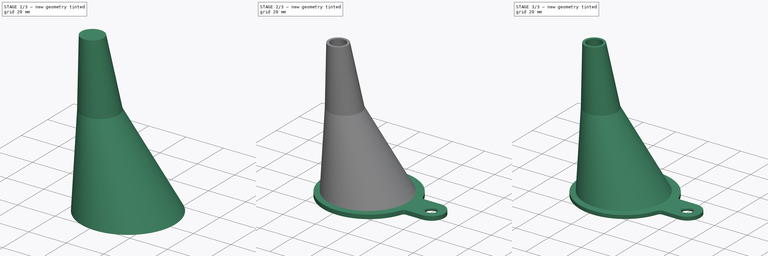
[diagram: build sequence overview — one tinted view per stage of 3, left to right]
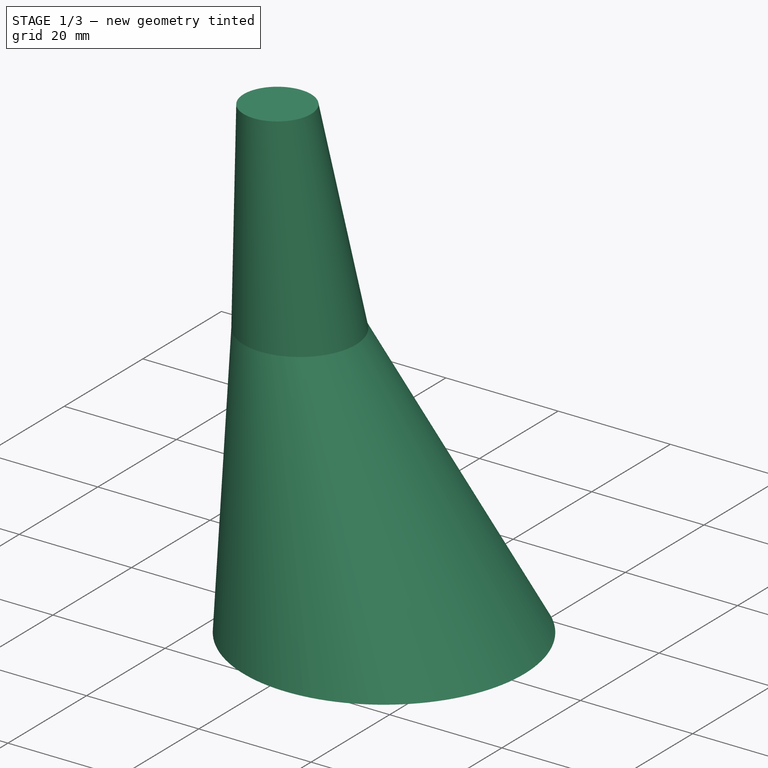
[diagram: stage 1 of 3 — iso view after this stage's code; geometry added in this stage tinted green]
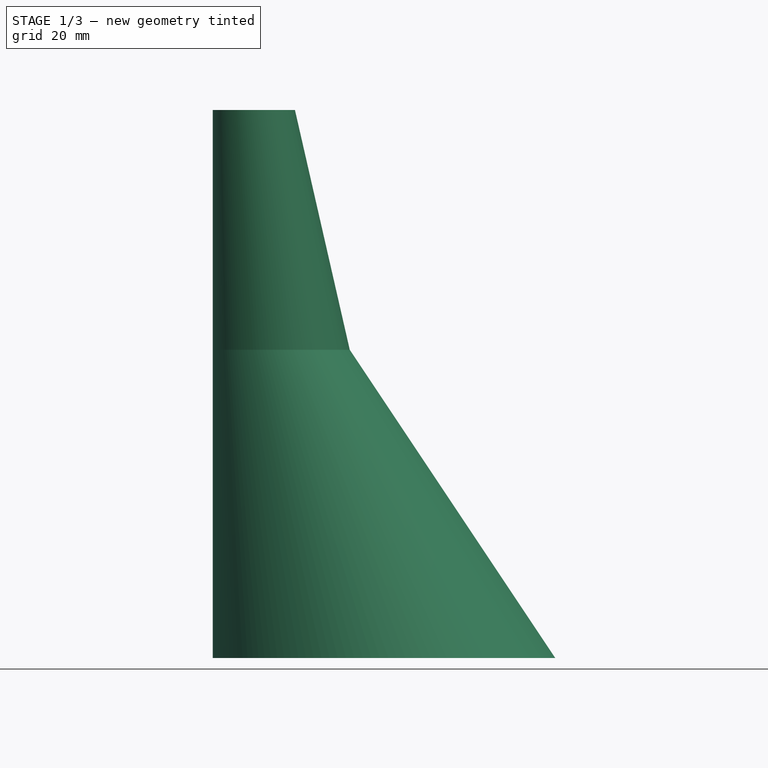
[diagram: stage 1 of 3 — front view after this stage's code; geometry added in this stage tinted green]
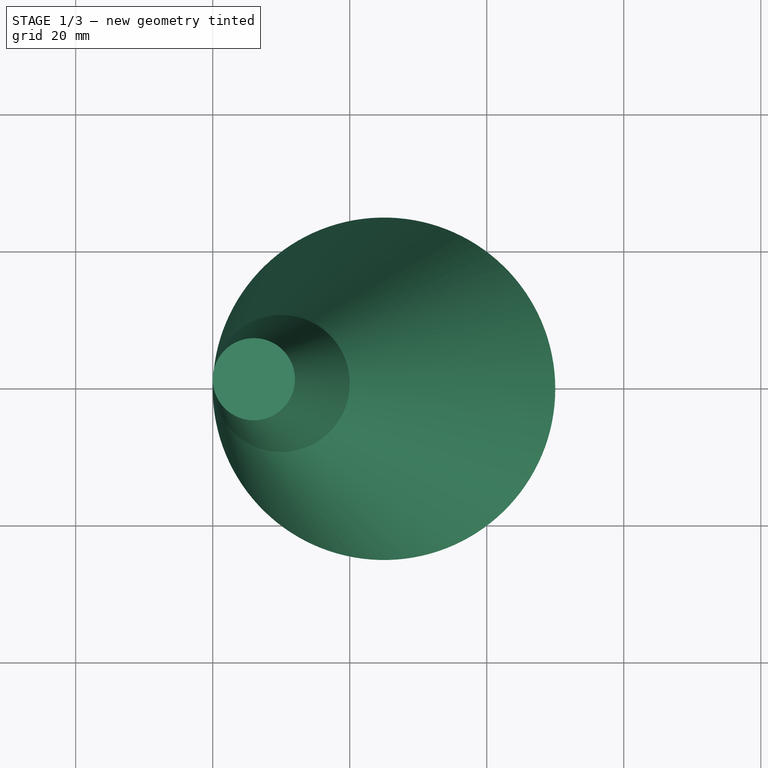
[diagram: stage 1 of 3 — top view after this stage's code; geometry added in this stage tinted green]
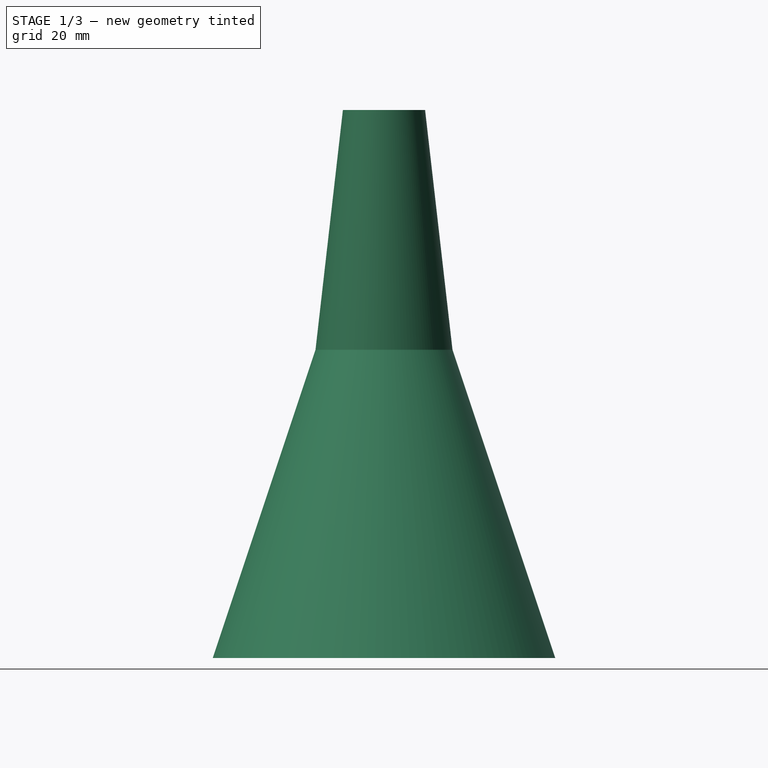
[diagram: stage 1 of 3 — right view after this stage's code; geometry added in this stage tinted green]
FCSTD DOCUMENT  (FreeCAD 0.15R4671 (Git))
Label: Offset funnel
License: All rights reserved
LicenseURL: http://en.wikipedia.org/wiki/All_rights_reserved
objects: Sketcher::SketchObject×7, Part::Loft×2, Part::Chamfer×2, Part::Cut×1, PartDesign::Pad×1, Part::Fillet×1
note: 15 computed .brp shape members not serialized (recipe doc carries the construction recipe); baked Part::Feature solids carry a one-line shape summary decoded from their .brp

FEATURE [Sketcher::SketchObject] Sketch  label="Funnel top outer"
  sketch-geometry (1):
    g0: Circle CenterX=25 CenterY=0 CenterZ=0 NormalX=0 NormalY=0 NormalZ=1 Radius=25
  constraints (3):
    c: Radius(g0) = 25
    c: PointOnObject(g0,g-1)
    c: PointOnObject(g-1,g0)
FEATURE [Sketcher::SketchObject] Sketch001  label="Funnel shoulder outer"
  Placement = pos=(0,0,45) rot=(0,0,1;0rad)
  sketch-geometry (1):
    g0: Circle CenterX=10 CenterY=0 CenterZ=0 NormalX=0 NormalY=0 NormalZ=1 Radius=10
  constraints (3):
    c: Radius(g0) = 10
    c: PointOnObject(g0,g-1)
    c: PointOnObject(g-1,g0)
FEATURE [Sketcher::SketchObject] Sketch002  label="Funnel tip outer"
  Placement = pos=(0,0,80) rot=(0,0,1;0rad)
  sketch-geometry (1):
    g0: Circle CenterX=6 CenterY=0 CenterZ=0 NormalX=0 NormalY=0 NormalZ=1 Radius=6
  constraints (3):
    c: Radius(g0) = 6
    c: PointOnObject(g0,g-1)
    c: PointOnObject(g-1,g0)
FEATURE [Part::Loft] Loft  label="Funnel outer"
  Closed = false
  Ruled = true
  Sections = -> [Sketch,Sketch001,Sketch002]
  Solid = true
FEATURE [Sketcher::SketchObject] Sketch003  label="Funnel top inner"
  sketch-geometry (2):
    g0: Circle CenterX=25 CenterY=0 CenterZ=0 NormalX=0 NormalY=0 NormalZ=1 Radius=23.5
    g1: LineSegment [constr] StartX=0 StartY=0 StartZ=0 EndX=1.5 EndY=0 EndZ=0
  constraints (6):
    c: Radius(g0) = 23.5
    c: PointOnObject(g0,g-1)
    c: Horizontal(g1)
    c: DistanceX(g1) = 1.5
    c: PointOnObject(g1,g0)
    c: Coincident(g1,g-1)
FEATURE [Sketcher::SketchObject] Sketch004  label="Funnel shoulder inner"
  Placement = pos=(0,0,45) rot=(0,0,1;0rad)
  sketch-geometry (2):
    g0: Circle CenterX=10 CenterY=0 CenterZ=0 NormalX=0 NormalY=0 NormalZ=1 Radius=8.5
    g1: LineSegment [constr] StartX=0 StartY=0 StartZ=0 EndX=1.5 EndY=0 EndZ=0
  constraints (6):
    c: Radius(g0) = 8.5
    c: PointOnObject(g0,g-1)
    c: Horizontal(g1)
    c: Coincident(g1,g-1)
    c: PointOnObject(g1,g0)
    c: DistanceX(g1) = 1.5
FEATURE [Sketcher::SketchObject] Sketch005  label="Funnel tip inner"
  Placement = pos=(0,0,80) rot=(0,0,1;0rad)
  sketch-geometry (2):
    g0: Circle CenterX=6 CenterY=0 CenterZ=0 NormalX=0 NormalY=0 NormalZ=1 Radius=4.5
    g1: LineSegment [constr] StartX=0 StartY=0 StartZ=0 EndX=1.5 EndY=0 EndZ=0
  constraints (6):
    c: Radius(g0) = 4.5
    c: PointOnObject(g0,g-1)
    c: Horizontal(g1)
    c: DistanceX(g1) = 1.5
    c: Coincident(g1,g-1)
    c: PointOnObject(g1,g0)
FEATURE [Part::Loft] Loft001  label="Funnel inner"
  Closed = false
  Ruled = true
  Sections = -> [Sketch003,Sketch004,Sketch005]
  Solid = true
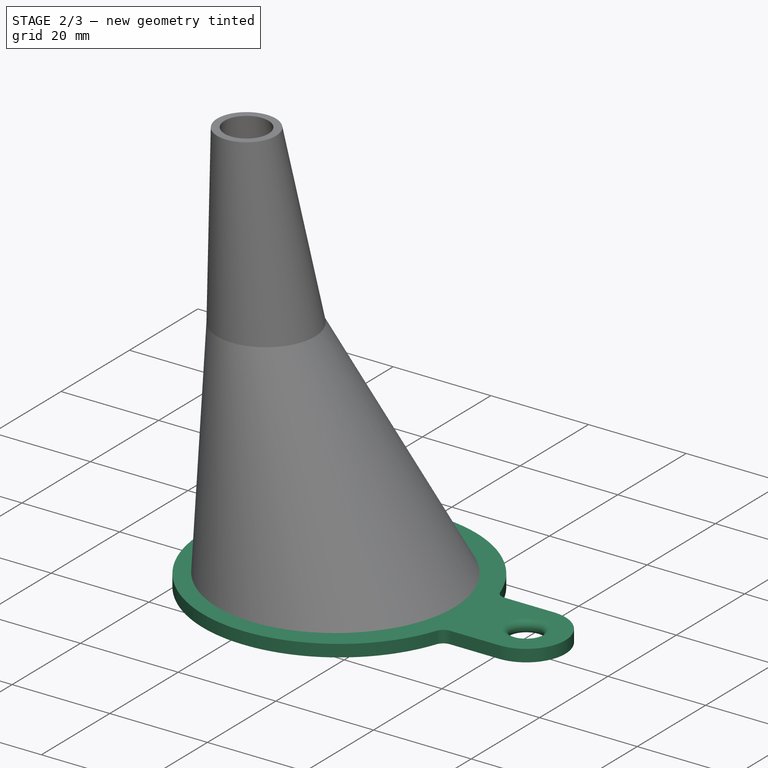
[diagram: stage 2 of 3 — iso view after this stage's code; geometry added in this stage tinted green]
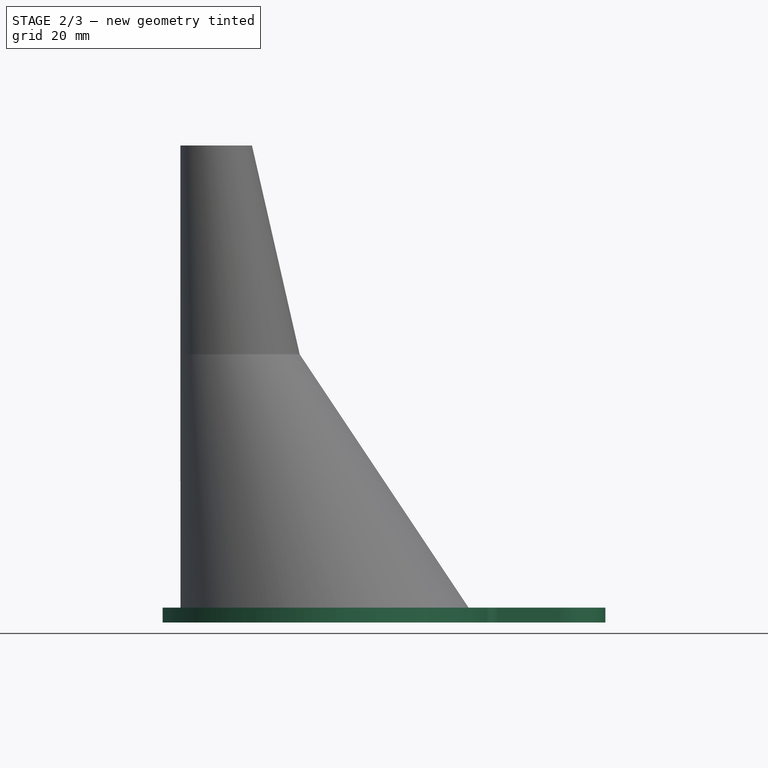
[diagram: stage 2 of 3 — front view after this stage's code; geometry added in this stage tinted green]
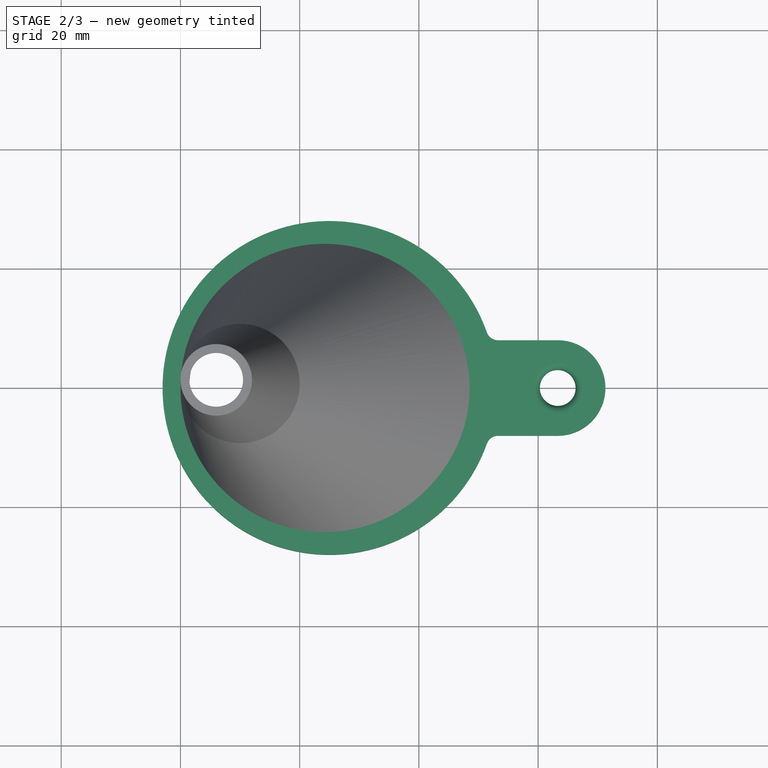
[diagram: stage 2 of 3 — top view after this stage's code; geometry added in this stage tinted green]
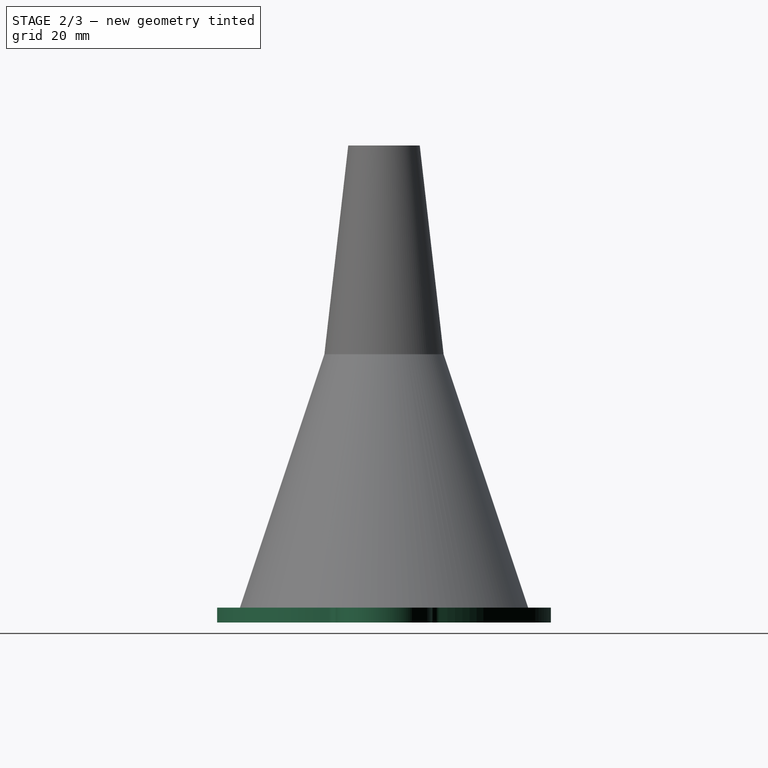
[diagram: stage 2 of 3 — right view after this stage's code; geometry added in this stage tinted green]
FEATURE [Part::Cut] Cut  label="Make basic Funnel"
  Base = -> Loft
  Tool = -> Loft001
FEATURE [Sketcher::SketchObject] Sketch006  label="Brim"
  ExternalGeometry = -> [Cut]
  Placement = pos=(0,0,0) rot=(1,0,0;3.14159rad)
  Support = -> Cut [Face2]
  sketch-geometry (8):
    g0: Circle CenterX=25 CenterY=0 CenterZ=0 NormalX=0 NormalY=0 NormalZ=1 Radius=23.5
    g1: ArcOfCircle CenterX=25 CenterY=0 CenterZ=0 NormalX=0 NormalY=0 NormalZ=1 Radius=28 StartAngle=0.339837 EndAngle=5.94335
    g2: LineSegment StartX=53.2843 StartY=8 StartZ=0 EndX=63.2843 EndY=8 EndZ=0
    g3: LineSegment StartX=53.2843 StartY=-8 StartZ=0 EndX=63.2843 EndY=-8 EndZ=0
    g4: ArcOfCircle CenterX=53.2843 CenterY=-10 CenterZ=0 NormalX=0 NormalY=0 NormalZ=1 Radius=2 StartAngle=1.5708 EndAngle=2.80176
    g5: ArcOfCircle CenterX=53.2843 CenterY=10 CenterZ=0 NormalX=0 NormalY=0 NormalZ=1 Radius=2 StartAngle=3.48143 EndAngle=4.71239
    g6: ArcOfCircle CenterX=63.2843 CenterY=0 CenterZ=0 NormalX=0 NormalY=0 NormalZ=1 Radius=8 StartAngle=4.71239 EndAngle=7.85398
    g7: Circle CenterX=63.2843 CenterY=0 CenterZ=0 NormalX=0 NormalY=0 NormalZ=1 Radius=3
  constraints (20):
    c: Coincident(g1,g0)
    c: Coincident(g0,g-3)
    c: Equal(g-3,g0)
    c: Symmetric(g1,g1,g-1)
    c: Radius(g4) = 2
    c: Tangent(g4,g1) = 1.5708
    c: Tangent(g4,g3) = 1.5708
    c: Horizontal(g3)
    c: Equal(g3,g2)
    c: Horizontal(g2)
    c: Tangent(g2,g5) = -1.5708
    c: Tangent(g5,g1) = 1.5708
    c: Equal(g5,g4)
    c: Tangent(g6,g3) = -1.5708
    c: Tangent(g2,g6) = 1.5708
    c: Radius(g6) = 8
    c: Radius(g1) = 28
    c: DistanceX(g3) = 10
    c: Coincident(g7,g6)
    c: Radius(g7) = 3
FEATURE [PartDesign::Pad] Pad  label="Make brim"
  Length = 2.5
  Length2 = 100
  Reversed = true
  Sketch = -> Sketch006
  Type = 0
FEATURE [Part::Fillet] Fillet  label="Radius inside of hanger hole"
  Base = -> Pad
  Edges = 2 edges r=1.24: [Edge15,Edge22]
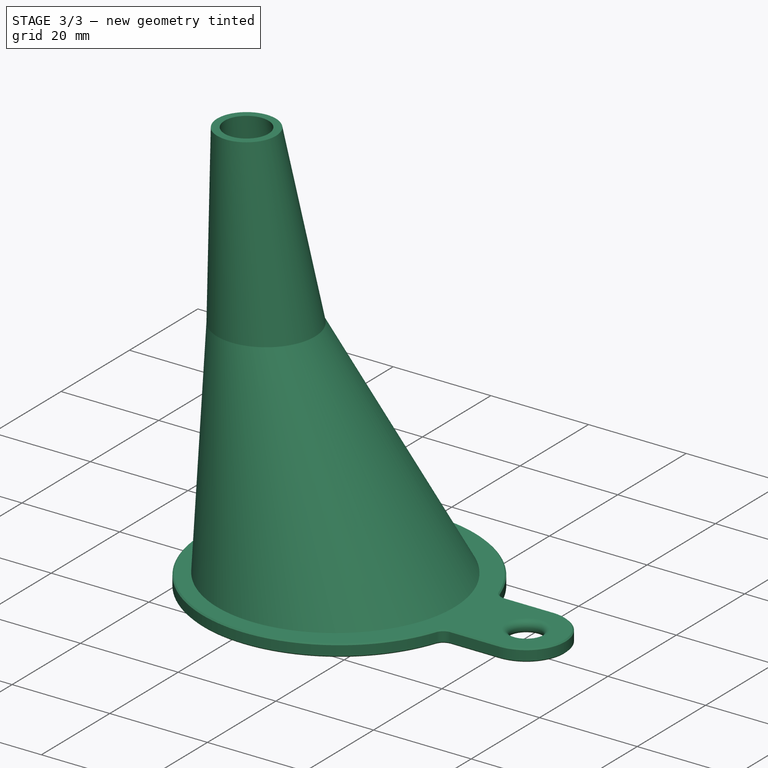
[diagram: stage 3 of 3 — iso view after this stage's code; geometry added in this stage tinted green]
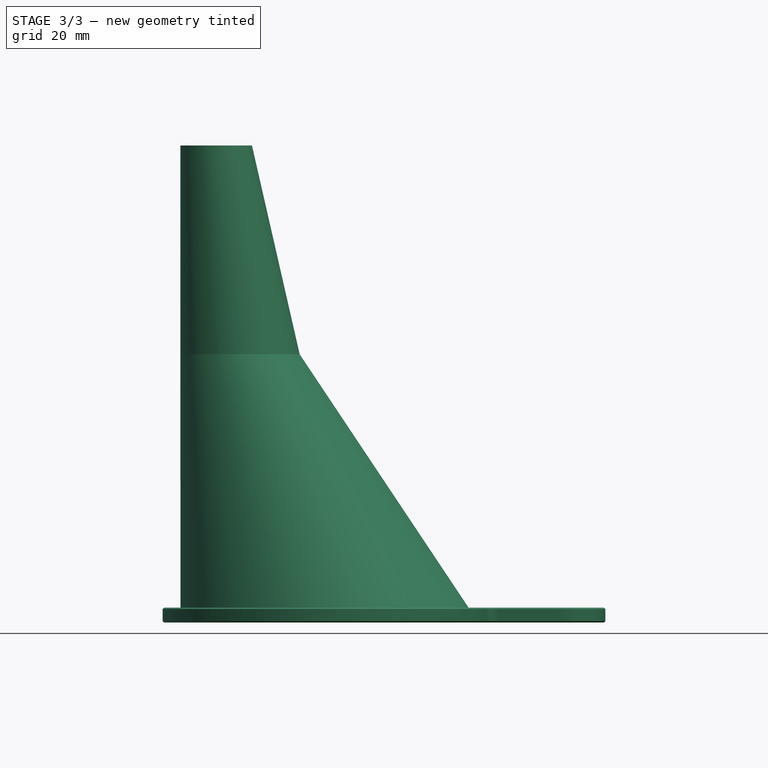
[diagram: stage 3 of 3 — front view after this stage's code; geometry added in this stage tinted green]
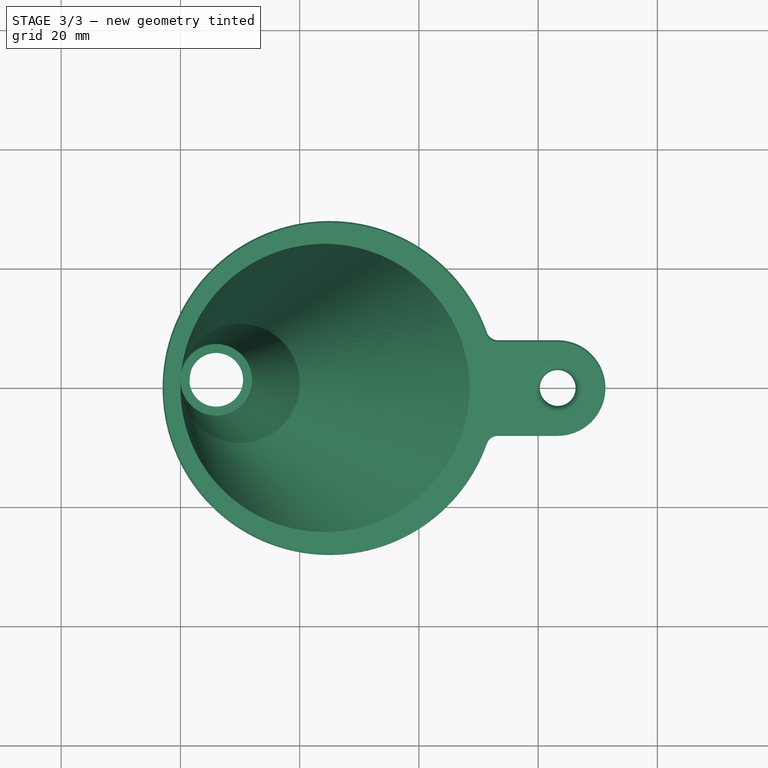
[diagram: stage 3 of 3 — top view after this stage's code; geometry added in this stage tinted green]
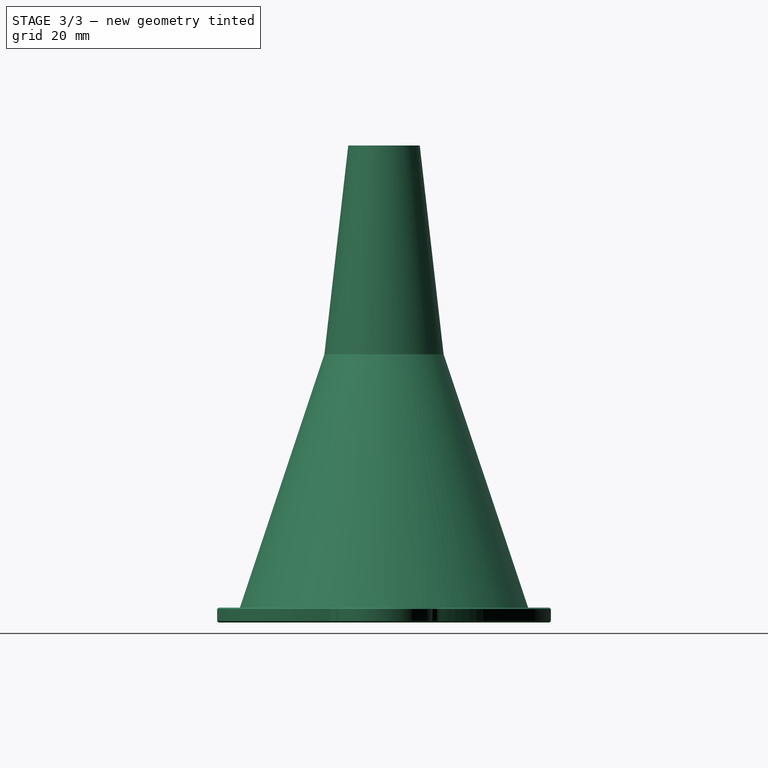
[diagram: stage 3 of 3 — right view after this stage's code; geometry added in this stage tinted green]
FEATURE [Part::Chamfer] Chamfer  label="Brim top edge chamfer"
  Base = -> Fillet
  Edges = 1 edges r=0.25: [Edge5]
FEATURE [Part::Chamfer] Chamfer001  label="brim bottom edge chamfer"
  Base = -> Chamfer
  Edges = 1 edges r=0.25: [Edge31]
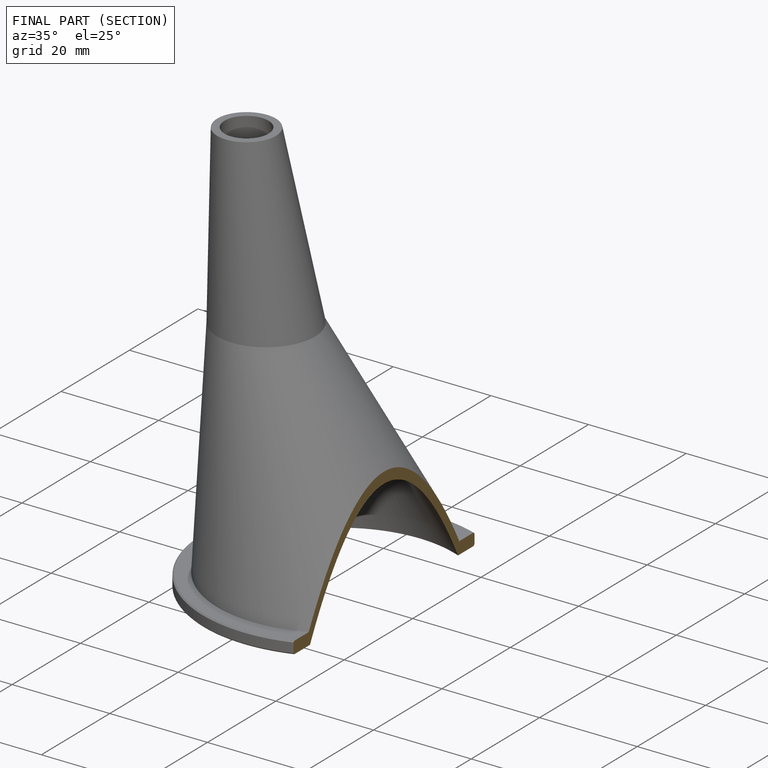
[diagram: finished part — half-section view (interior)]
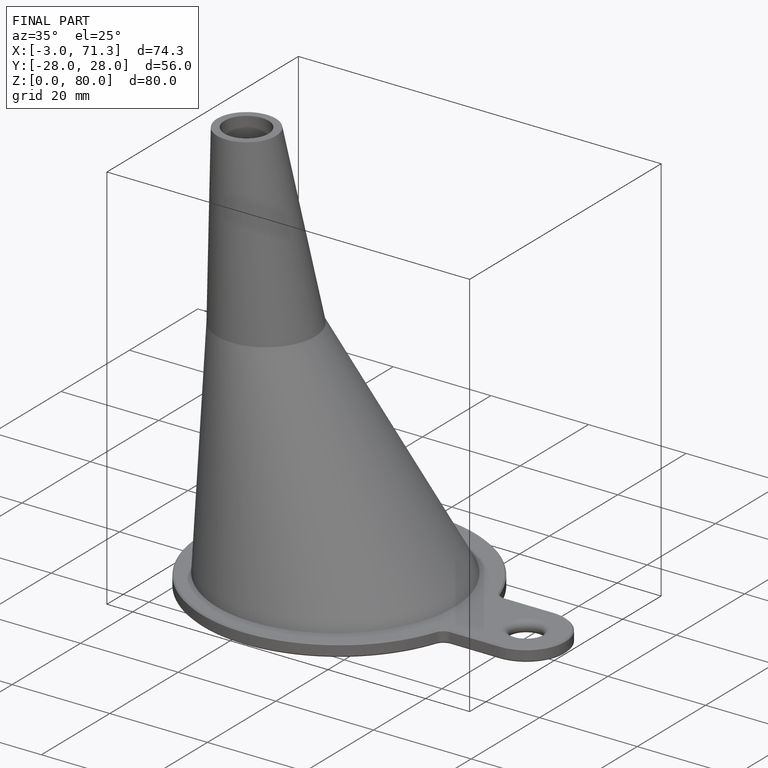
[diagram: finished part — iso view with bounding-box wireframe]
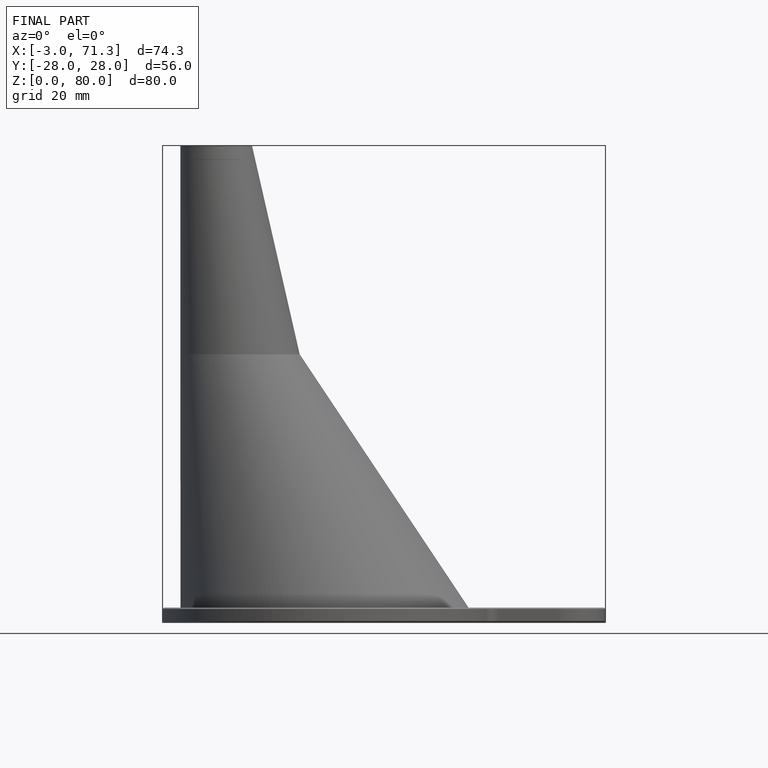
[diagram: finished part — front view with bounding-box wireframe]
